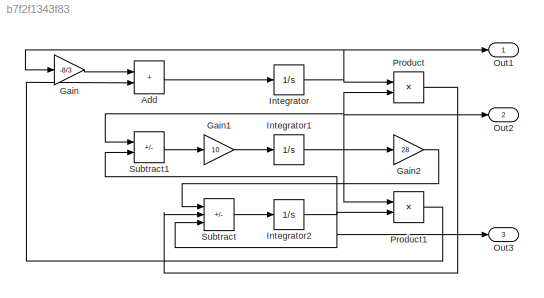
MODEL slx_b7f2f1343f83
KIND model
CONFIG AbsTol = auto
CONFIG EnableMultiTasking = off
CONFIG FixedStep = 0.01
CONFIG MaxStep = auto
CONFIG MinStep = auto
CONFIG RelTol = 1e-3
CONFIG SampleTimeConstraint = Unconstrained
CONFIG Solver = FixedStepAuto
CONFIG SolverName = FixedStepAuto
CONFIG StartTime = 0.0
CONFIG StopTime = 60
BLOCK [Sum] Add
  IconShape = rectangular
  Ports = [2, 1]
BLOCK [Gain] Gain
  Gain = -8/3
BLOCK [Gain] Gain1
  Gain = 10
BLOCK [Gain] Gain2
  Gain = 28
BLOCK [Integrator] Integrator
  Ports = [1, 1]
BLOCK [Integrator] Integrator1
  Ports = [1, 1]
BLOCK [Integrator] Integrator2
  InitialCondition = 0.001
  Ports = [1, 1]
BLOCK [Outport] Out1
  IconDisplay = Signal name
BLOCK [Outport] Out2
  IconDisplay = Signal name
  Port = 2
BLOCK [Outport] Out3
  IconDisplay = Signal name
  Port = 3
BLOCK [Product] Product
  Ports = [2, 1]
BLOCK [Product] Product1
  Ports = [2, 1]
BLOCK [Sum] Subtract
  IconShape = rectangular
  Inputs = +--
  Ports = [3, 1]
BLOCK [Sum] Subtract1
  IconShape = rectangular
  Inputs = -+
  Ports = [2, 1]
LINE Add:1 -> Integrator:1
LINE Gain1:1 -> Integrator1:1
LINE Gain2:1 -> Subtract:1
LINE Gain:1 -> Add:1
NET Integrator1:1 -> Gain2:1, Out2:1, Product1:1, Product:2, Subtract1:1
NET Integrator2:1 -> Out3:1, Product1:2, Subtract1:2, Subtract:3
NET Integrator:1 -> Gain:1, Out1:1, Product:1
LINE Product1:1 -> Add:2
LINE Product:1 -> Subtract:2
LINE Subtract1:1 -> Gain1:1
LINE Subtract:1 -> Integrator2:1
note: NET lines group one-source signal fan-out (src -> all destinations, sorted); 1:1 wires keep LINE
